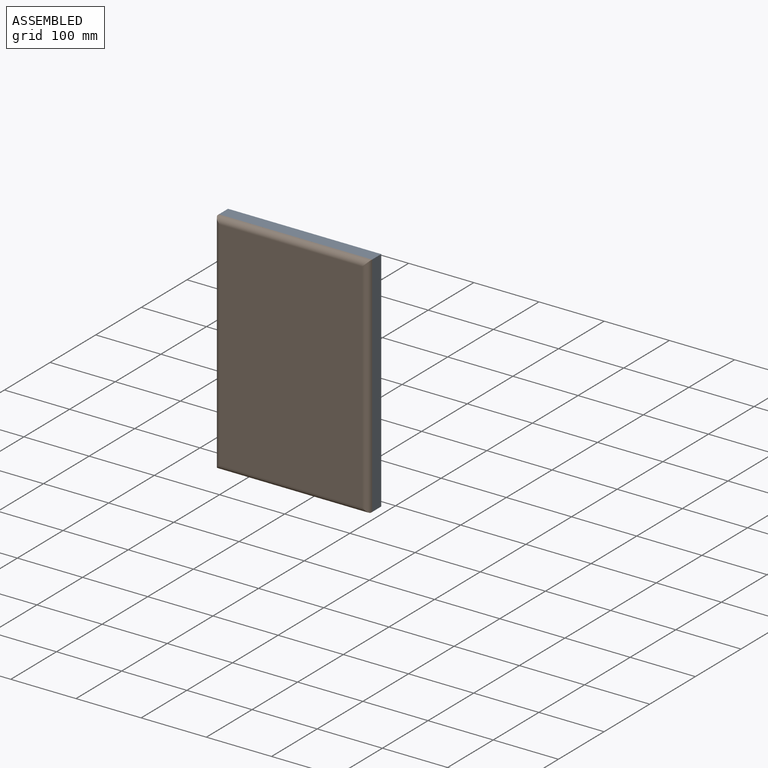
[diagram: assembled view]
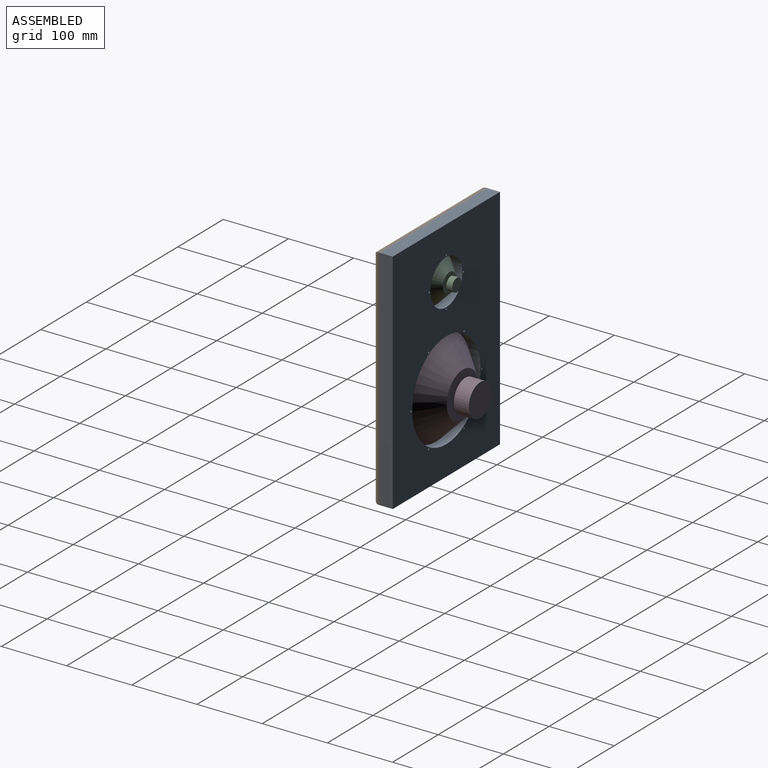
[diagram: assembled view, second angle]
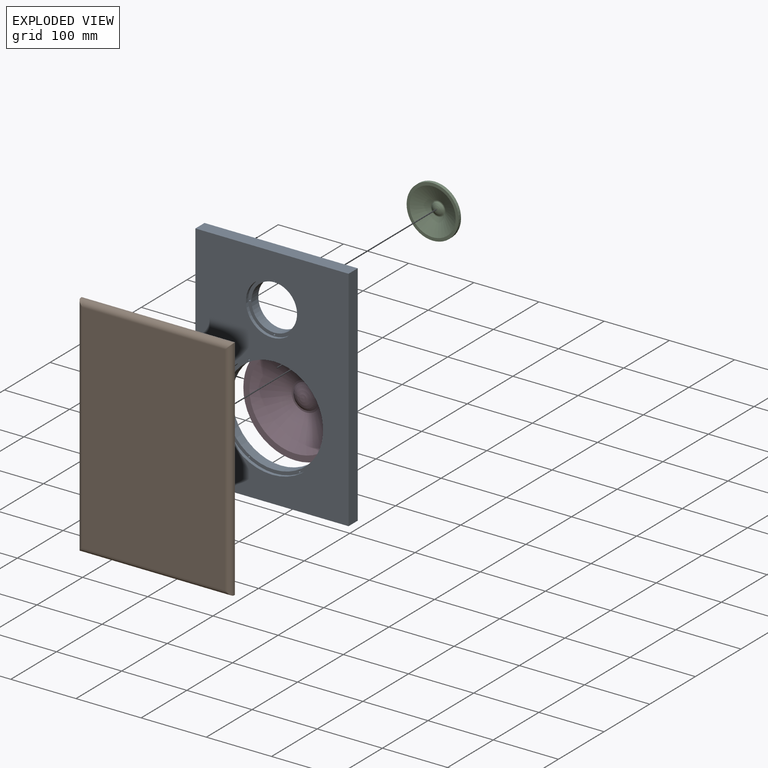
[diagram: exploded view]
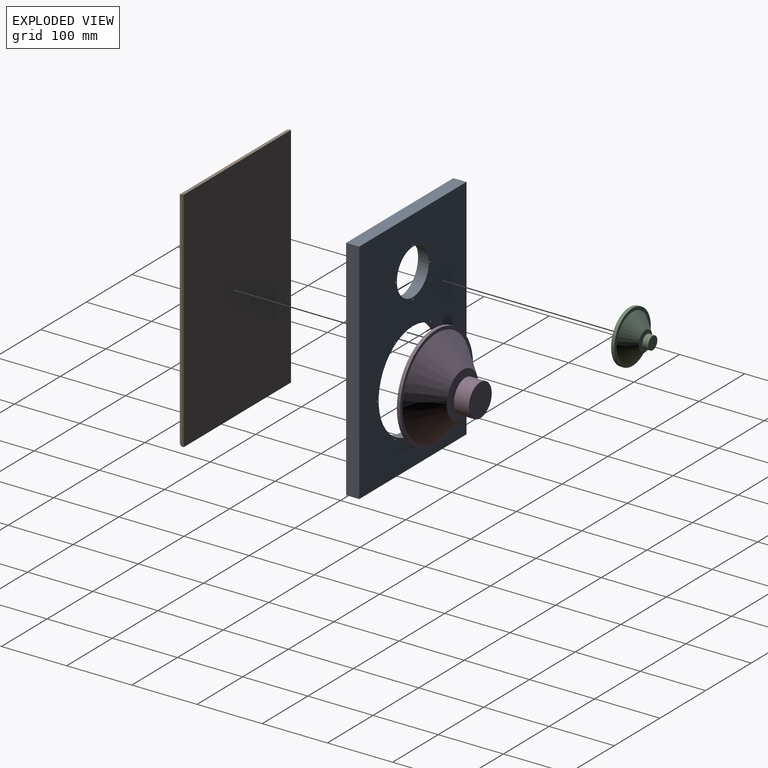
[diagram: exploded view, second angle]
ASSEMBLY  parts=4 mates=4
PART A: 22 faces, bbox 235x20x350 mm
  f0: plane 235x20mm, normal (0,0,1), area 4700mm2, adj f1,f5,f6,f7
  f1: plane 350x20mm, normal (-1,0,0), area 7000mm2, adj f0,f2,f6,f7
  f2: plane 235x20mm, normal (0,0,-1), area 4700mm2, adj f1,f5,f6,f7
  f3: cylinder r=40mm len=80mm, axis (0,1,0), area 1256.6mm2, adj f6,f13
  f4: cylinder r=80mm len=160mm, axis (0,1,0), area 2513.3mm2, adj f6,f21
  f5: plane 350x20mm, normal (1,0,0), area 7000mm2, adj f0,f2,f6,f7
  f6: plane 350x235mm, normal (0,-1,0), area 57117.3mm2, adj f0,f1,f2,f3,f4,f5
  f7: plane 350x235mm, normal (0,1,0), area 60681mm2, adj f0,f1,f2,f5,f8,f9,f10,f11
  f8: cylinder r=35mm len=70mm, axis (0,1,0), area 3298.7mm2, adj f7,f13
  f9: cylinder r=1.25mm len=15mm, axis (0,1,0), area 117.8mm2, adj f7,f13
  f10: cylinder r=1.25mm len=15mm, axis (0,1,0), area 117.8mm2, adj f7,f13
  f11: cylinder r=1.25mm len=15mm, axis (0,1,0), area 117.8mm2, adj f7,f13
  f12: cylinder r=1.25mm len=15mm, axis (0,1,0), area 117.8mm2, adj f7,f13
  f13: plane 80x80mm, normal (0,-1,0), area 1158.5mm2, adj f3,f8,f9,f10,f11,f12
  f14: cylinder r=75mm len=150mm, axis (0,1,0), area 7068.6mm2, adj f7,f21
  f15: cylinder r=1.25mm len=15mm, axis (0,1,0), area 117.8mm2, adj f7,f21
  f16: cylinder r=1.25mm len=15mm, axis (0,1,0), area 117.8mm2, adj f7,f21
  f17: cylinder r=1.25mm len=15mm, axis (0,1,0), area 117.8mm2, adj f7,f21
  f18: cylinder r=1.25mm len=15mm, axis (0,1,0), area 117.8mm2, adj f7,f21
  f19: cylinder r=1.25mm len=15mm, axis (0,1,0), area 117.8mm2, adj f7,f21
  f20: cylinder r=1.25mm len=15mm, axis (0,1,0), area 117.8mm2, adj f7,f21
  f21: plane 160x160mm, normal (0,-1,0), area 2405.3mm2, adj f4,f14,f15,f16,f17,f18,f19,f20
PART B: 10 faces, bbox 235x10x350 mm
  f0: plane 235x2mm, normal (0,0,1), area 470mm2, adj f1,f3,f5,f6
  f1: plane 350x2mm, normal (-1,0,0), area 700mm2, adj f0,f2,f5,f7
  f2: plane 235x2mm, normal (0,0,-1), area 470mm2, adj f1,f3,f5,f9
  f3: plane 350x2mm, normal (1,0,0), area 700mm2, adj f0,f2,f5,f8
  f4: plane 334x219mm, normal (0,-1,0), area 73146mm2, adj f6,f7,f8,f9
  f5: plane 350x235mm, normal (0,1,0), area 82250mm2, adj f0,f1,f2,f3
  f6: cylinder r=8mm len=235mm, axis (1,0,0), area 2880mm2, adj f0,f4,f7,f8
  f7: cylinder r=8mm len=350mm, axis (0,0,1), area 4325.2mm2, adj f1,f4,f6,f9
  f8: cylinder r=8mm len=350mm, axis (0,0,-1), area 4325.2mm2, adj f3,f4,f6,f9
  f9: cylinder r=8mm len=235mm, axis (-1,0,0), area 2880mm2, adj f2,f4,f7,f8
PART C: 12 faces, bbox 36x80x80 mm
  f0: plane 80x80mm, normal (-1,0,0), area 1102.2mm2, adj f1,f11
  f1: cone r=35.34mm half-angle=64.4deg, axis (-1,0,0), area 3922.1mm2, adj f0,f2
  f2: plane 22.24x22.24mm, normal (-1,0,0), area 87.4mm2, adj f1,f3
  f3: sphere r=15.02mm, area 342.3mm2, adj f2
  f4: plane 20.05x20.05mm, normal (1,0,0), area 315.6mm2, adj f5
  f5: cylinder r=10.02mm len=20.05mm, axis (-1,0,0), area 566.8mm2, adj f4,f6
  f6: plane 20.05x20.05mm, normal (-1,0,0), area 232.5mm2, adj f5,f7
  f7: cylinder r=5.14mm len=10.29mm, axis (-1,0,0), area 64.6mm2, adj f6,f8
  f8: plane 30x30mm, normal (1,0,0), area 623.8mm2, adj f7,f9
  f9: cone r=15mm half-angle=45deg, axis (-1,0,0), area 4442.9mm2, adj f8,f10
  f10: plane 80x80mm, normal (1,0,0), area 1178.1mm2, adj f9,f11
  f11: cylinder r=40mm len=80mm, axis (-1,0,0), area 1256.6mm2, adj f0,f10
PART D: 12 faces, bbox 72x160x160 mm
  f0: plane 160x160mm, normal (-1,0,0), area 4408.8mm2, adj f1,f11
  f1: cone r=70.69mm half-angle=64.4deg, axis (-1,0,0), area 15688.4mm2, adj f0,f2
  f2: plane 44.48x44.48mm, normal (-1,0,0), area 349.5mm2, adj f1,f3
  f3: sphere r=30.05mm, area 1369.3mm2, adj f2
  f4: plane 50.09x50.09mm, normal (1,0,0), area 1970.7mm2, adj f5
  f5: cylinder r=25.05mm len=50.09mm, axis (-1,0,0), area 3619.5mm2, adj f4,f6
  f6: plane 50.09x50.09mm, normal (-1,0,0), area 1236.7mm2, adj f5,f7
  f7: cylinder r=15.29mm len=30.57mm, axis (-1,0,0), area 384.2mm2, adj f6,f8
  f8: plane 70x70mm, normal (1,0,0), area 3114.4mm2, adj f7,f9
  f9: cone r=35mm half-angle=45deg, axis (-1,0,0), area 19548.7mm2, adj f8,f10
  f10: plane 160x160mm, normal (1,0,0), area 2434.7mm2, adj f9,f11
  f11: cylinder r=80mm len=160mm, axis (-1,0,0), area 2513.3mm2, adj f0,f10
PLACE A t=(-305.45,-223.57,-39.65)mm
PLACE B t=(-611.94,-243.57,-502.04)mm
PLACE C rot(axis=(-0.58,-0.58,0.58),120deg) t=(-622.91,-207.57,-409.39)mm
PLACE D rot(axis=(-0.58,-0.58,0.58),120deg) t=(-622.91,-171.57,-559.39)mm
MATE planar C.f1 <-> A.f3  axis (0,1,0) through (-622.91,-238.57,-409.39)mm
MATE planar B.f1 <-> A.f1  axis (1,0,0) through (-740.41,-243.57,-679.39)mm
MATE planar D.f1 <-> A.f4  axis (0,1,0) through (-622.91,-238.57,-559.39)mm
MATE planar B.f5 <-> A.f6  axis (0,1,0) through (-622.91,-243.57,-504.39)mm
